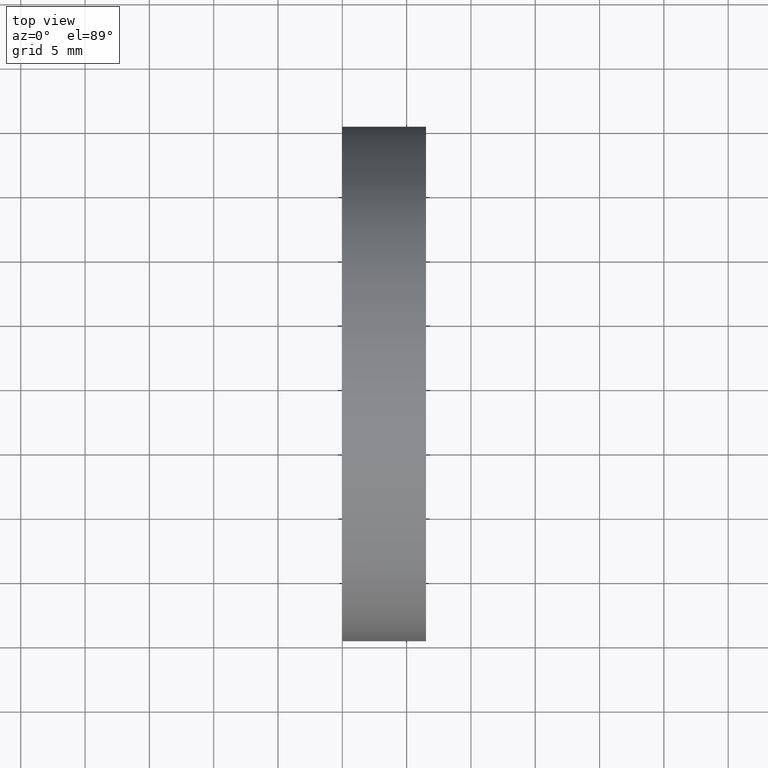
[diagram: clean part render]
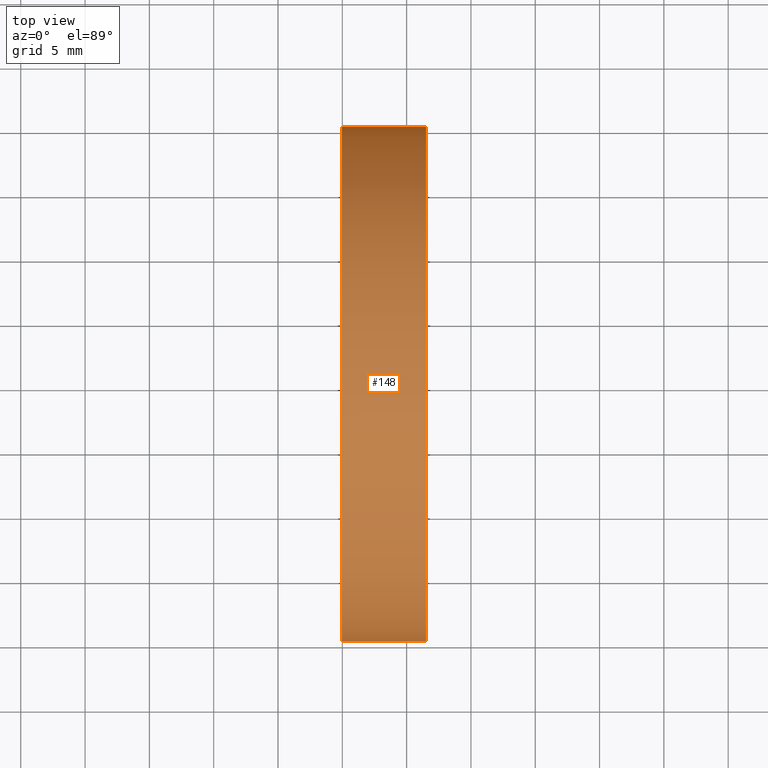
[diagram: same view with one face highlighted and labeled with its STEP entity id]
A machine part, top view. The second image highlights one B-rep face of the part: STEP entity #148.
In plain terms, the highlighted cylindrical surface (partial cylindrical patch) has radius 20 mm, axis along (-1, 0, -0).
Its self-contained STEP definition (entity closure, byte-faithful):
#1 = CIRCLE ( 'NONE', #123, 20.00000000000000400 ) ;
#13 = AXIS2_PLACEMENT_3D ( 'NONE', #120, #76, #119 ) ;
#29 = ORIENTED_EDGE ( 'NONE', *, *, #146, .T. ) ;
#30 = CARTESIAN_POINT ( 'NONE',  ( 114.9754472601862300, 85.15745182658619700, 2.449293598294710100E-015 ) ) ;
#32 = CARTESIAN_POINT ( 'NONE',  ( 121.5056828236496500, 45.15745356914864300, 0.0000000000000000000 ) ) ;
#35 = CARTESIAN_POINT ( 'NONE',  ( 114.9754472601862000, 45.15745182658619000, 0.0000000000000000000 ) ) ;
#36 = VERTEX_POINT ( 'NONE', #30 ) ;
#38 = CARTESIAN_POINT ( 'NONE',  ( 110.0147892488423800, 85.15745182658621100, 2.449293598294708100E-015 ) ) ;
#39 = CARTESIAN_POINT ( 'NONE',  ( 121.5056828236496500, 65.15745182658618300, 0.0000000000000000000 ) ) ;
#40 = DIRECTION ( 'NONE',  ( -1.000000000000000000, 6.488933942079480100E-016, -0.0000000000000000000 ) ) ;
#44 = LINE ( 'NONE', #117, #108 ) ;
#52 = CARTESIAN_POINT ( 'NONE',  ( 121.5056828236496800, 85.15745182658619700, 2.449293384892351400E-015 ) ) ;
#53 = EDGE_CURVE ( 'NONE', #86, #111, #44, .T. ) ;
#57 = EDGE_CURVE ( 'NONE', #111, #36, #1, .T. ) ;
#58 = DIRECTION ( 'NONE',  ( -1.000000000000000000, 6.488933942079480100E-016, -0.0000000000000000000 ) ) ;
#71 = DIRECTION ( 'NONE',  ( -1.000000000000000000, 6.488933942079480100E-016, -0.0000000000000000000 ) ) ;
#76 = DIRECTION ( 'NONE',  ( -1.000000000000000000, 6.488933942079480100E-016, -0.0000000000000000000 ) ) ;
#86 = VERTEX_POINT ( 'NONE', #32 ) ;
#90 = ORIENTED_EDGE ( 'NONE', *, *, #53, .F. ) ;
#98 = LINE ( 'NONE', #38, #157 ) ;
#103 = ORIENTED_EDGE ( 'NONE', *, *, #57, .F. ) ;
#108 = VECTOR ( 'NONE', #58, 1000.000000000000000 ) ;
#110 = DIRECTION ( 'NONE',  ( -6.938893903907224400E-016, -1.000000000000000000, 0.0000000000000000000 ) ) ;
#111 = VERTEX_POINT ( 'NONE', #35 ) ;
#112 = DIRECTION ( 'NONE',  ( -1.000000000000000000, 6.488933942079480100E-016, -0.0000000000000000000 ) ) ;
#115 = VERTEX_POINT ( 'NONE', #52 ) ;
#116 = CYLINDRICAL_SURFACE ( 'NONE', #13, 20.00000000000001100 ) ;
#117 = CARTESIAN_POINT ( 'NONE',  ( 110.0147892488423500, 45.15745182658618300, 0.0000000000000000000 ) ) ;
#119 = DIRECTION ( 'NONE',  ( -6.938893903907224400E-016, -1.000000000000000000, 0.0000000000000000000 ) ) ;
#120 = CARTESIAN_POINT ( 'NONE',  ( 110.0147892488423600, 65.15745182658619700, 0.0000000000000000000 ) ) ;
#121 = ORIENTED_EDGE ( 'NONE', *, *, #140, .T. ) ;
#123 = AXIS2_PLACEMENT_3D ( 'NONE', #141, #71, #154 ) ;
#126 = FACE_OUTER_BOUND ( 'NONE', #134, .T. ) ;
#134 = EDGE_LOOP ( 'NONE', ( #121, #29, #103, #90 ) ) ;
#138 = CIRCLE ( 'NONE', #166, 20.00000000000001100 ) ;
#140 = EDGE_CURVE ( 'NONE', #86, #115, #138, .T. ) ;
#141 = CARTESIAN_POINT ( 'NONE',  ( 114.9754472601862100, 65.15745182658619700, 0.0000000000000000000 ) ) ;
#146 = EDGE_CURVE ( 'NONE', #115, #36, #98, .T. ) ;
#148 = ADVANCED_FACE ( 'NONE', ( #126 ), #116, .T. ) ;
#154 = DIRECTION ( 'NONE',  ( -6.938893903907227400E-016, -1.000000000000000000, 0.0000000000000000000 ) ) ;
#157 = VECTOR ( 'NONE', #112, 1000.000000000000000 ) ;
#166 = AXIS2_PLACEMENT_3D ( 'NONE', #39, #40, #110 ) ;